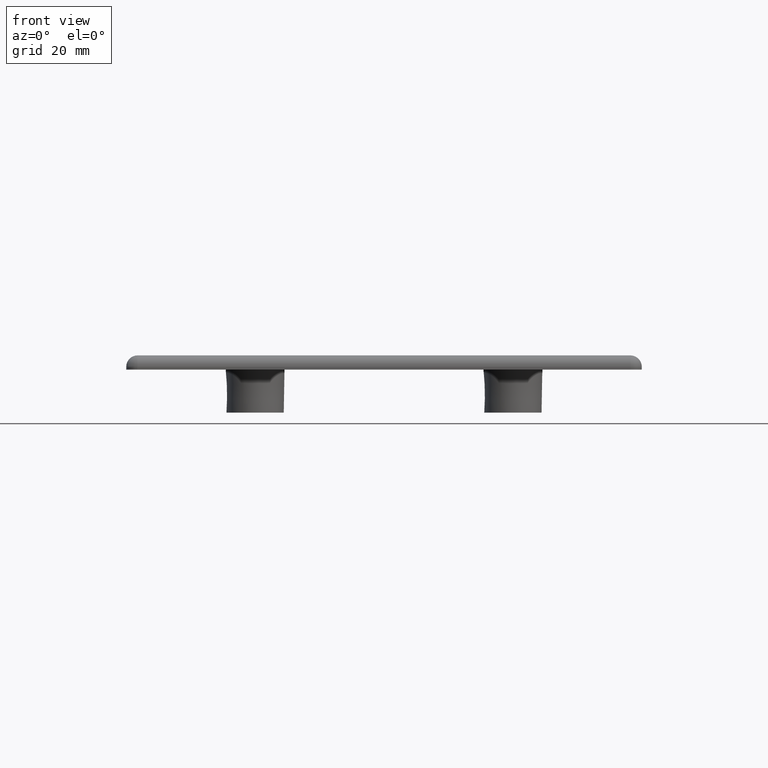
[diagram: clean part render]
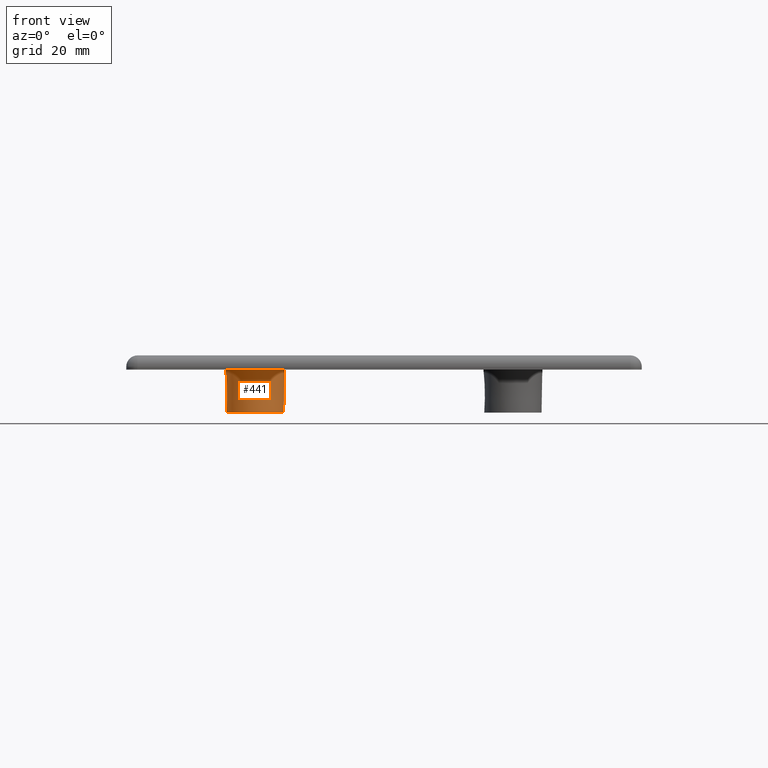
[diagram: same view with one face highlighted and labeled with its STEP entity id]
A machine part, front view. The second image highlights one B-rep face of the part: STEP entity #441.
In plain terms, the highlighted conical surface has half-angle 1 deg.
Its self-contained STEP definition (entity closure, byte-faithful):
#53=FACE_OUTER_BOUND('',#88,.T.);
#88=EDGE_LOOP('',(#323,#324,#325,#326));
#128=LINE('',#743,#156);
#156=VECTOR('',#586,5.);
#187=CIRCLE('',#502,5.13091298696163);
#188=CIRCLE('',#503,5.);
#219=VERTEX_POINT('',#740);
#220=VERTEX_POINT('',#742);
#258=EDGE_CURVE('',#219,#219,#187,.T.);
#259=EDGE_CURVE('',#219,#220,#128,.T.);
#260=EDGE_CURVE('',#220,#220,#188,.T.);
#323=ORIENTED_EDGE('',*,*,#258,.F.);
#324=ORIENTED_EDGE('',*,*,#259,.T.);
#325=ORIENTED_EDGE('',*,*,#260,.F.);
#326=ORIENTED_EDGE('',*,*,#259,.F.);
#432=CONICAL_SURFACE('',#501,5.,0.0174532925199433);
#441=ADVANCED_FACE('',(#53),#432,.T.);
#501=AXIS2_PLACEMENT_3D('',#739,#582,#583);
#502=AXIS2_PLACEMENT_3D('',#741,#584,#585);
#503=AXIS2_PLACEMENT_3D('',#744,#587,#588);
#582=DIRECTION('center_axis',(0.,0.,1.));
#583=DIRECTION('ref_axis',(-1.,0.,0.));
#584=DIRECTION('center_axis',(0.,0.,1.));
#585=DIRECTION('ref_axis',(-1.,0.,0.));
#586=DIRECTION('',(-0.0174524064372835,-2.13730336808379E-18,-0.999847695156391));
#587=DIRECTION('center_axis',(0.,0.,-1.));
#588=DIRECTION('ref_axis',(-1.,0.,0.));
#739=CARTESIAN_POINT('Origin',(-22.5,-22.5,-7.5));
#740=CARTESIAN_POINT('',(-17.3690870130384,-22.5,0.));
#741=CARTESIAN_POINT('Origin',(-22.5,-22.5,0.));
#742=CARTESIAN_POINT('',(-17.5,-22.5,-7.5));
#743=CARTESIAN_POINT('',(-17.5,-22.5,-7.5));
#744=CARTESIAN_POINT('Origin',(-22.5,-22.5,-7.5));